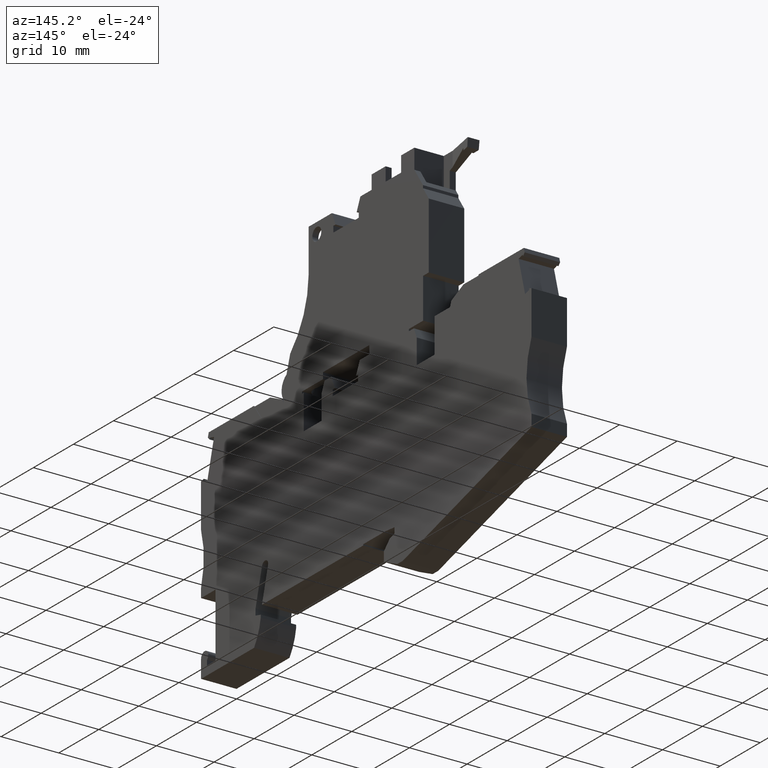
[diagram: clean part render]
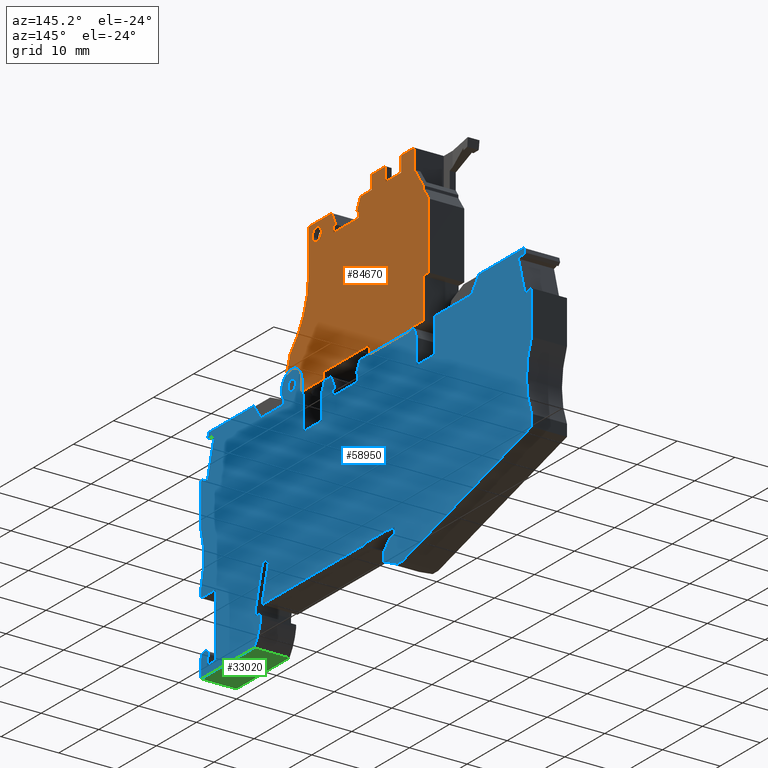
[diagram: same view with three faces highlighted in distinct colors, each labeled with its STEP entity id]
A machine part, auxiliary view with three faces highlighted in distinct colors.
Their STEP definitions:

[orange] entity #84670 — the highlighted planar face has unit normal (1, 0, 0).
#1080=CARTESIAN_POINT('',(53.0297787793713,35.811800285281,
0.499999999960732));
#1090=VERTEX_POINT('',#1080);
#32200=CARTESIAN_POINT('',(43.2035718829087,34.605293786159,
0.499999999962035));
#32210=VERTEX_POINT('',#32200);
#56740=CARTESIAN_POINT('',(22.1629120977651,36.4969717721369,
0.499999999964754));
#56750=VERTEX_POINT('',#56740);
#57730=CARTESIAN_POINT('',(5.12459570687038,30.3149006317548,
0.499999999967079));
#57740=DIRECTION('',(1.30635874114573E-13,1.60400341780722E-14,1.));
#57750=DIRECTION('',(0.992546151641338,0.121869343405017,
-1.31616922552198E-13));
#57760=AXIS2_PLACEMENT_3D('',#57730,#57740,#57750);
#57770=PLANE('',#57760);
#58490=CARTESIAN_POINT('',(23.7235978425183,34.4803508344977,
0.499999999964583));
#58500=DIRECTION('',(-1.30635874114573E-13,-1.60400341780722E-14,-1.));
#58510=DIRECTION('',(-0.951056516295151,0.309016994374956,
1.19285456187198E-13));
#58520=AXIS2_PLACEMENT_3D('',#58490,#58500,#58510);
#58530=CIRCLE('',#58520,2.54999999999999);
#58540=CARTESIAN_POINT('',(26.2654752253813,34.6837208679081,
0.499999999964247));
#58550=VERTEX_POINT('',#58540);
#58560=EDGE_CURVE('',#56750,#58550,#58530,.T.);
#58580=CARTESIAN_POINT('',(30.5241006626263,-3.5527136788005E-15,
0.499999999964247));
#58590=DIRECTION('',(-0.121869343405147,0.992546151641322,0.));
#58600=VECTOR('',#58590,1.);
#58610=LINE('',#58580,#58600);
#58620=CARTESIAN_POINT('',(26.483874498957,32.9050015242892,
0.499999999964247));
#58630=VERTEX_POINT('',#58620);
#58640=EDGE_CURVE('',#58630,#58550,#58610,.T.);
#58860=CARTESIAN_POINT('',(-2.48689957516035E-14,29.3005621830834,
0.499999999967765));
#58870=DIRECTION('',(-0.992546151641339,-0.121869343405015,
1.31610000675408E-13));
#58880=VECTOR('',#58870,1.);
#58890=LINE('',#58860,#58880);
#58900=EDGE_CURVE('',#1090,#32210,#58890,.T.);
#59820=CARTESIAN_POINT('',(-2.48689957516035E-14,29.6531906229272,
0.499999999967759));
#59830=DIRECTION('',(0.992546151641322,0.121869343405147,
-1.31603061781504E-13));
#59840=VECTOR('',#59830,1.);
#59850=LINE('',#59820,#59840);
#59860=CARTESIAN_POINT('',(31.6809485780502,33.5431219830705,
0.499999999963558));
#59870=VERTEX_POINT('',#59860);
#59880=EDGE_CURVE('',#58630,#59870,#59850,.T.);
#60330=CARTESIAN_POINT('',(15.4441640214051,-3.5527136788005E-15,
0.499999999966217));
#60340=DIRECTION('',(-0.181048319411903,-0.983474202019619,
3.94267951620009E-14));
#60350=VECTOR('',#60340,1.);
#60360=LINE('',#60330,#60350);
#60370=CARTESIAN_POINT('',(22.7103002633193,39.470443942782,
0.499999999965319));
#60380=VERTEX_POINT('',#60370);
#60390=EDGE_CURVE('',#60380,#56750,#60360,.T.);
#63460=CARTESIAN_POINT('',(25.9845191247301,50.4781094293561,
0.499999999965014));
#63470=VERTEX_POINT('',#63460);
#63500=CARTESIAN_POINT('',(11.0651328052451,48.9250763869472,
0.499999999966004));
#63510=DIRECTION('',(6.55111548403831E-14,8.21254566076691E-15,1.));
#63520=DIRECTION('',(0.990506268008274,0.13746757085335,
-6.60181681963679E-14));
#63530=AXIS2_PLACEMENT_3D('',#63500,#63510,#63520);
#63540=CIRCLE('',#63530,14.999999992695);
#63550=EDGE_CURVE('',#60380,#63470,#63540,.T.);
#63860=CARTESIAN_POINT('',(25.0586748890969,58.0185056226961,
0.49999999996403));
#63870=VERTEX_POINT('',#63860);
#63900=CARTESIAN_POINT('',(32.1824516262224,-3.5527136788005E-15,
0.49999999996403));
#63910=DIRECTION('',(0.121869343405148,-0.992546151641322,0.));
#63920=VECTOR('',#63910,1.);
#63930=LINE('',#63900,#63920);
#63940=EDGE_CURVE('',#63870,#63470,#63930,.T.);
#64510=CARTESIAN_POINT('',(30.8245150026396,58.7264617692738,
0.499999999963266));
#64520=VERTEX_POINT('',#64510);
#64550=CARTESIAN_POINT('',(-2.48689957516035E-14,54.9416872296297,
0.499999999967353));
#64560=DIRECTION('',(-0.992546151641322,-0.121869343405148,
1.31603061781504E-13));
#64570=VECTOR('',#64560,1.);
#64580=LINE('',#64550,#64570);
#64590=EDGE_CURVE('',#64520,#63870,#64580,.T.);
#65430=CARTESIAN_POINT('',(65.7260861590798,-3.5527136788005E-15,
0.499999999959648));
#65440=DIRECTION('',(-0.510892985900963,0.859644320028463,
5.30131494258512E-14));
#65450=VECTOR('',#65440,1.);
#65460=LINE('',#65430,#65450);
#65470=CARTESIAN_POINT('',(31.9992076083904,56.7498877035087,
0.499999999963144));
#65480=VERTEX_POINT('',#65470);
#65490=EDGE_CURVE('',#65480,#64520,#65460,.T.);
#65740=CARTESIAN_POINT('',(-2.48689957516035E-14,52.8208790480716,
0.499999999967387));
#65750=DIRECTION('',(0.992546151641322,0.121869343405148,
-1.31603061781504E-13));
#65760=VECTOR('',#65750,1.);
#65770=LINE('',#65740,#65760);
#65780=CARTESIAN_POINT('',(31.475244016681,56.6855530639716,
0.499999999963214));
#65790=VERTEX_POINT('',#65780);
#65800=EDGE_CURVE('',#65790,#65480,#65770,.T.);
#66050=CARTESIAN_POINT('',(38.4353547591791,-3.5527136788005E-15,
0.499999999963213));
#66060=DIRECTION('',(-0.121869343405148,0.992546151641322,0.));
#66070=VECTOR('',#66060,1.);
#66080=LINE('',#66050,#66070);
#66090=CARTESIAN_POINT('',(31.605644214061,55.6235286822326,
0.499999999963213));
#66100=VERTEX_POINT('',#66090);
#66110=EDGE_CURVE('',#66100,#65790,#66080,.T.);
#66360=CARTESIAN_POINT('',(-2.48689957516035E-14,51.7428435353538,
0.499999999967404));
#66370=DIRECTION('',(-0.992546151641315,-0.121869343405205,
1.31610000675408E-13));
#66380=VECTOR('',#66370,1.);
#66390=LINE('',#66360,#66380);
#66400=CARTESIAN_POINT('',(37.8834986201358,56.3943522788952,
0.499999999962381));
#66410=VERTEX_POINT('',#66400);
#66420=EDGE_CURVE('',#66410,#66100,#66390,.T.);
#66670=CARTESIAN_POINT('',(44.8078544021037,-3.5527136788005E-15,
0.499999999962381));
#66680=DIRECTION('',(0.121869343405148,-0.992546151641322,0.));
#66690=VECTOR('',#66680,1.);
#66700=LINE('',#66670,#66690);
#66710=CARTESIAN_POINT('',(37.7530984227559,57.4563766606335,
0.499999999962381));
#66720=VERTEX_POINT('',#66710);
#66730=EDGE_CURVE('',#66720,#66410,#66700,.T.);
#66980=CARTESIAN_POINT('',(-2.48689957516035E-14,52.8208790480712,
0.499999999967387));
#66990=DIRECTION('',(0.992546151641322,0.121869343405148,
-1.31603061781504E-13));
#67000=VECTOR('',#66990,1.);
#67010=LINE('',#66980,#67000);
#67020=CARTESIAN_POINT('',(37.2291348310479,57.3920420210965,
0.49999999996245));
#67030=VERTEX_POINT('',#67020);
#67040=EDGE_CURVE('',#67030,#66720,#67010,.T.);
#67290=CARTESIAN_POINT('',(19.9852219604109,-3.5527136788005E-15,
0.499999999965624));
#67300=DIRECTION('',(-0.287750497360487,-0.957705409439037,
5.295763827462E-14));
#67310=VECTOR('',#67300,1.);
#67320=LINE('',#67290,#67310);
#67330=CARTESIAN_POINT('',(37.8907575013107,59.5940872517062,
0.499999999962329));
#67340=VERTEX_POINT('',#67330);
#67350=EDGE_CURVE('',#67340,#67030,#67320,.T.);
#67940=CARTESIAN_POINT('',(-2.48689957516035E-14,54.9416872296293,
0.499999999967353));
#67950=DIRECTION('',(-0.992546151641322,-0.121869343405148,
1.31603061781504E-13));
#67960=VECTOR('',#67950,1.);
#67970=LINE('',#67940,#67960);
#67980=CARTESIAN_POINT('',(47.9798206964012,60.8328684460371,
0.499999999960991));
#67990=VERTEX_POINT('',#67980);
#68000=CARTESIAN_POINT('',(44.1466226632748,60.3622109086857,
0.4999999999615));
#68010=VERTEX_POINT('',#68000);
#68020=EDGE_CURVE('',#67990,#68010,#67970,.T.);
#68240=CARTESIAN_POINT('',(40.6727111325301,59.9356682067677,
0.49999999996196));
#68250=VERTEX_POINT('',#68240);
#68280=EDGE_CURVE('',#68250,#67340,#67970,.T.);
#68530=CARTESIAN_POINT('',(55.4491577370121,-3.5527136788005E-15,
0.499999999960991));
#68540=DIRECTION('',(0.121869343405147,-0.992546151641322,0.));
#68550=VECTOR('',#68540,1.);
#68560=LINE('',#68530,#68550);
#68570=CARTESIAN_POINT('',(47.6532108560749,63.4928921324404,
0.499999999960991));
#68580=VERTEX_POINT('',#68570);
#68590=EDGE_CURVE('',#68580,#67990,#68560,.T.);
#69120=CARTESIAN_POINT('',(50.9415314620025,63.8966471341472,
0.499999999960555));
#69130=VERTEX_POINT('',#69120);
#69160=CARTESIAN_POINT('',(-2.48689957516035E-14,57.6418135618637,
0.49999999996731));
#69170=DIRECTION('',(-0.992546151641322,-0.121869343405148,
1.31603061781504E-13));
#69180=VECTOR('',#69170,1.);
#69190=LINE('',#69160,#69180);
#69200=EDGE_CURVE('',#69130,#68580,#69190,.T.);
#69750=CARTESIAN_POINT('',(103.737130571275,-3.5527136788005E-15,
0.499999999954683));
#69760=DIRECTION('',(-0.657225128829871,0.753694321349551,
7.38298311375729E-14));
#69770=VECTOR('',#69760,1.);
#69780=LINE('',#69750,#69770);
#69790=CARTESIAN_POINT('',(55.6419397182922,55.1547265008777,
0.499999999960081));
#69800=VERTEX_POINT('',#69790);
#69810=CARTESIAN_POINT('',(53.9416353820203,57.10460587493,
0.499999999960272));
#69820=VERTEX_POINT('',#69810);
#69830=EDGE_CURVE('',#69800,#69820,#69780,.T.);
#70130=CARTESIAN_POINT('',(62.4140885934223,-3.5527136788005E-15,
0.499999999960081));
#70140=DIRECTION('',(-0.121869343405148,0.992546151641322,0.));
#70150=VECTOR('',#70140,1.);
#70160=LINE('',#70130,#70150);
#70170=CARTESIAN_POINT('',(57.0471425610685,43.7102677477332,
0.499999999960081));
#70180=VERTEX_POINT('',#70170);
#70190=EDGE_CURVE('',#70180,#69800,#70160,.T.);
#70440=CARTESIAN_POINT('',(-2.48689957516035E-14,36.7057593976069,
0.499999999967646));
#70450=DIRECTION('',(0.992546151641322,0.121869343405148,
-1.31603061781504E-13));
#70460=VECTOR('',#70450,1.);
#70470=LINE('',#70440,#70460);
#70480=CARTESIAN_POINT('',(55.6575779494478,43.5396506670491,
0.499999999960265));
#70490=VERTEX_POINT('',#70480);
#70500=EDGE_CURVE('',#70490,#70180,#70470,.T.);
#70750=CARTESIAN_POINT('',(61.0035748384673,-3.5527136788005E-15,
0.499999999960265));
#70760=DIRECTION('',(-0.121869343405148,0.992546151641322,0.));
#70770=VECTOR('',#70760,1.);
#70780=LINE('',#70750,#70770);
#70790=CARTESIAN_POINT('',(56.5106633528568,36.5918276090379,
0.499999999960265));
#70800=VERTEX_POINT('',#70790);
#70810=EDGE_CURVE('',#70800,#70490,#70780,.T.);
#71100=CARTESIAN_POINT('',(52.9871245090662,36.1591914392788,
0.499999999960732));
#71110=VERTEX_POINT('',#71100);
#71140=CARTESIAN_POINT('',(-2.48689957516035E-14,29.6531906229255,
0.499999999967759));
#71150=DIRECTION('',(0.992546151641322,0.121869343405148,
-1.31610000675408E-13));
#71160=VECTOR('',#71150,1.);
#71170=LINE('',#71140,#71160);
#71180=EDGE_CURVE('',#71110,#70800,#71170,.T.);
#71370=CARTESIAN_POINT('',(47.4525676853582,-3.5527136788005E-15,
0.499999999962035));
#71380=DIRECTION('',(0.121869343405148,-0.992546151641322,0.));
#71390=VECTOR('',#71380,1.);
#71400=LINE('',#71370,#71390);
#71410=CARTESIAN_POINT('',(43.0268613348578,36.0444857069626,
0.499999999962035));
#71420=VERTEX_POINT('',#71410);
#71430=EDGE_CURVE('',#71420,#32210,#71400,.T.);
#71680=CARTESIAN_POINT('',(-2.48689957516035E-14,30.7614514309316,
0.499999999967741));
#71690=DIRECTION('',(0.992546151641321,0.121869343405154,
-1.31610000675408E-13));
#71700=VECTOR('',#71690,1.);
#71710=LINE('',#71680,#71700);
#71720=CARTESIAN_POINT('',(31.5468923003045,34.6349227498759,
0.499999999963558));
#71730=VERTEX_POINT('',#71720);
#71740=EDGE_CURVE('',#71730,#71420,#71710,.T.);
#71990=CARTESIAN_POINT('',(35.7995260820541,-3.5527136788005E-15,
0.499999999963558));
#72000=DIRECTION('',(-0.121869343405147,0.992546151641322,0.));
#72010=VECTOR('',#72000,1.);
#72020=LINE('',#71990,#72010);
#72030=EDGE_CURVE('',#59870,#71730,#72020,.T.);
#72570=CARTESIAN_POINT('',(28.447808693322,56.5203702632118,
0.499999999963685));
#72580=VERTEX_POINT('',#72570);
#72610=CARTESIAN_POINT('',(27.3311942732693,56.3832672519478,
0.49999999996376));
#72620=DIRECTION('',(6.55111548403841E-14,8.21254566075881E-15,1.));
#72630=DIRECTION('',(0.992546151641322,0.121869343405147,
-6.60237021737635E-14));
#72640=AXIS2_PLACEMENT_3D('',#72610,#72620,#72630);
#72650=CIRCLE('',#72640,1.12499999945212);
#72660=CARTESIAN_POINT('',(26.2145798532166,56.2461642406837,
0.499999999963834));
#72670=VERTEX_POINT('',#72660);
#72680=EDGE_CURVE('',#72670,#72580,#72650,.T.);
#78740=CARTESIAN_POINT('',(51.3616522817786,60.4750376362858,
0.499999999960555));
#78750=VERTEX_POINT('',#78740);
#78780=CARTESIAN_POINT('',(58.7870532235366,-3.5527136788005E-15,
0.499999999960555));
#78790=DIRECTION('',(0.121869343405147,-0.992546151641322,0.));
#78800=VECTOR('',#78790,1.);
#78810=LINE('',#78780,#78800);
#78820=EDGE_CURVE('',#69130,#78750,#78810,.T.);
#80820=CARTESIAN_POINT('',(104.096180426201,-3.5527136788005E-15,
0.499999999954636));
#80830=DIRECTION('',(-0.657225128829871,0.753694321349551,
7.38298311375729E-14));
#80840=VECTOR('',#80830,1.);
#80850=LINE('',#80820,#80840);
#80860=CARTESIAN_POINT('',(53.8827931730547,57.5838372093331,
0.499999999960277));
#80870=VERTEX_POINT('',#80860);
#80880=EDGE_CURVE('',#80870,#78750,#80850,.T.);
#81160=CARTESIAN_POINT('',(60.953199339907,-3.5527136788005E-15,
0.499999999960272));
#81170=DIRECTION('',(-0.121869343405148,0.992546151641322,
6.93889390390723E-18));
#81180=VECTOR('',#81170,1.);
#81190=LINE('',#81160,#81180);
#81200=EDGE_CURVE('',#69820,#80870,#81190,.T.);
#81400=CARTESIAN_POINT('',(51.5581702248263,-3.5527136788005E-15,
0.499999999961499));
#81410=DIRECTION('',(-0.121869343405148,0.992546151641322,0.));
#81420=VECTOR('',#81410,1.);
#81430=LINE('',#81400,#81420);
#81440=CARTESIAN_POINT('',(43.8541362390372,62.7443216731562,
0.499999999961499));
#81450=VERTEX_POINT('',#81440);
#81460=EDGE_CURVE('',#68010,#81450,#81430,.T.);
#82090=CARTESIAN_POINT('',(48.0318858357203,-3.5527136788005E-15,
0.49999999996196));
#82100=DIRECTION('',(0.121869343405148,-0.992546151641322,0.));
#82110=VECTOR('',#82100,1.);
#82120=LINE('',#82090,#82110);
#82130=CARTESIAN_POINT('',(40.3802247082926,62.3177789712381,
0.49999999996196));
#82140=VERTEX_POINT('',#82130);
#82150=EDGE_CURVE('',#82140,#68250,#82120,.T.);
#82400=CARTESIAN_POINT('',(-2.48689957516035E-14,57.3597108112698,
0.499999999967314));
#82410=DIRECTION('',(-0.992546151641322,-0.121869343405148,
1.31610000675408E-13));
#82420=VECTOR('',#82410,1.);
#82430=LINE('',#82400,#82420);
#82440=EDGE_CURVE('',#81450,#82140,#82430,.T.);
#84070=CARTESIAN_POINT('',(57.4269149525372,-3.5527136788005E-15,
0.499999999960732));
#84080=DIRECTION('',(0.121869343405014,-0.992546151641338,0.));
#84090=VECTOR('',#84080,1.);
#84100=LINE('',#84070,#84090);
#84110=EDGE_CURVE('',#71110,#1090,#84100,.T.);
#84260=ORIENTED_EDGE('',*,*,#71430,.T.);
#84270=ORIENTED_EDGE('',*,*,#71740,.T.);
#84280=ORIENTED_EDGE('',*,*,#72030,.T.);
#84290=ORIENTED_EDGE('',*,*,#59880,.T.);
#84300=ORIENTED_EDGE('',*,*,#58640,.F.);
#84310=ORIENTED_EDGE('',*,*,#58560,.T.);
#84320=ORIENTED_EDGE('',*,*,#60390,.T.);
#84330=ORIENTED_EDGE('',*,*,#63550,.F.);
#84340=ORIENTED_EDGE('',*,*,#63940,.T.);
#84350=ORIENTED_EDGE('',*,*,#64590,.T.);
#84360=ORIENTED_EDGE('',*,*,#65490,.T.);
#84370=ORIENTED_EDGE('',*,*,#65800,.T.);
#84380=ORIENTED_EDGE('',*,*,#66110,.T.);
#84390=ORIENTED_EDGE('',*,*,#66420,.T.);
#84400=ORIENTED_EDGE('',*,*,#66730,.T.);
#84410=ORIENTED_EDGE('',*,*,#67040,.T.);
#84420=ORIENTED_EDGE('',*,*,#67350,.T.);
#84430=ORIENTED_EDGE('',*,*,#68280,.T.);
#84440=ORIENTED_EDGE('',*,*,#82150,.T.);
#84450=ORIENTED_EDGE('',*,*,#82440,.T.);
#84460=ORIENTED_EDGE('',*,*,#81460,.T.);
#84470=ORIENTED_EDGE('',*,*,#68020,.T.);
#84480=ORIENTED_EDGE('',*,*,#68590,.T.);
#84490=ORIENTED_EDGE('',*,*,#69200,.T.);
#84500=ORIENTED_EDGE('',*,*,#78820,.F.);
#84510=ORIENTED_EDGE('',*,*,#80880,.T.);
#84520=ORIENTED_EDGE('',*,*,#81200,.T.);
#84530=ORIENTED_EDGE('',*,*,#69830,.T.);
#84540=ORIENTED_EDGE('',*,*,#70190,.T.);
#84550=ORIENTED_EDGE('',*,*,#70500,.T.);
#84560=ORIENTED_EDGE('',*,*,#70810,.T.);
#84570=ORIENTED_EDGE('',*,*,#71180,.T.);
#84580=ORIENTED_EDGE('',*,*,#84110,.F.);
#84590=ORIENTED_EDGE('',*,*,#58900,.F.);
#84600=EDGE_LOOP('',(#84590,#84580,#84570,#84560,#84550,#84540,#84530,
#84520,#84510,#84500,#84490,#84480,#84470,#84460,#84450,#84440,#84430,
#84420,#84410,#84400,#84390,#84380,#84370,#84360,#84350,#84340,#84330,
#84320,#84310,#84300,#84290,#84280,#84270,#84260));
#84610=FACE_OUTER_BOUND('',#84600,.T.);
#84620=EDGE_CURVE('',#72580,#72670,#72650,.T.);
#84630=ORIENTED_EDGE('',*,*,#84620,.F.);
#84640=ORIENTED_EDGE('',*,*,#72680,.F.);
#84650=EDGE_LOOP('',(#84640,#84630));
#84660=FACE_BOUND('',#84650,.T.);
#84670=ADVANCED_FACE('',(#84610,#84660),#57770,.T.);

[blue] entity #58950 — the highlighted planar face has unit normal (1, 0, 0).
#120=CARTESIAN_POINT('',(84.8702166293314,27.5808210657404,
0.499999999956705));
#130=VERTEX_POINT('',#120);
#290=CARTESIAN_POINT('',(86.3326487494341,15.6702672522041,
0.499999999956705));
#300=VERTEX_POINT('',#290);
#330=CARTESIAN_POINT('',(99.2466863026298,23.3009706322769,
0.499999999954896));
#340=DIRECTION('',(1.30635874114574E-13,1.60400341780714E-14,1.));
#350=DIRECTION('',(0.992546151641338,0.121869343405017,
-1.31616922552198E-13));
#360=AXIS2_PLACEMENT_3D('',#330,#340,#350);
#370=CIRCLE('',#360,15.);
#380=EDGE_CURVE('',#130,#300,#370,.T.);
#690=CARTESIAN_POINT('',(55.8163182368192,0.639222961579942,
0.499999999960934));
#700=VERTEX_POINT('',#690);
#730=CARTESIAN_POINT('',(26.409558637322,-11.782950709781,
0.499999999964974));
#740=DIRECTION('',(0.921182350415005,0.389131182615691,
-1.26581139034291E-13));
#750=VECTOR('',#740,1.);
#760=LINE('',#730,#750);
#770=CARTESIAN_POINT('',(86.5824697081946,13.6356388190877,
0.499999999956705));
#780=VERTEX_POINT('',#770);
#790=EDGE_CURVE('',#700,#780,#760,.T.);
#1080=CARTESIAN_POINT('',(53.0297787793713,35.811800285281,
0.499999999960732));
#1090=VERTEX_POINT('',#1080);
#1240=CARTESIAN_POINT('',(54.252099665049,35.9618824185112,
0.499999999960571));
#1250=VERTEX_POINT('',#1240);
#1280=CARTESIAN_POINT('',(-2.48689957516035E-14,29.3005621830849,
0.499999999967764));
#1290=DIRECTION('',(0.992546151641338,0.121869343405014,
-1.31610000675408E-13));
#1300=VECTOR('',#1290,1.);
#1310=LINE('',#1280,#1300);
#1320=EDGE_CURVE('',#1090,#1250,#1310,.T.);
#4540=CARTESIAN_POINT('',(86.6783015281376,12.8551512787071,
0.499999999956705));
#4550=DIRECTION('',(-0.121869343405393,0.992546151641292,
3.4007892214545E-20));
#4560=VECTOR('',#4550,1.);
#4570=LINE('',#4540,#4560);
#4580=EDGE_CURVE('',#780,#300,#4570,.T.);
#4800=CARTESIAN_POINT('',(40.1694208776503,32.1119387046764,
0.499999999962471));
#4810=VERTEX_POINT('',#4800);
#4860=CARTESIAN_POINT('',(20.5295663542834,29.70046779083,
0.499999999961139));
#4870=DIRECTION('',(0.992546151641335,0.121869343405043,
3.0322983360969E-14));
#4880=VECTOR('',#4870,1.);
#4890=LINE('',#4860,#4880);
#4900=CARTESIAN_POINT('',(40.6933844696148,32.1762733442449,
0.499999999962403));
#4910=VERTEX_POINT('',#4900);
#4920=EDGE_CURVE('',#4810,#4910,#4890,.T.);
#5370=CARTESIAN_POINT('',(3.51461203501251,31.3114407598305,
0.499999999967273));
#5380=VERTEX_POINT('',#5370);
#5410=CARTESIAN_POINT('',(20.6270603406576,28.9064429911535,
0.499999999961139));
#5420=DIRECTION('',(0.990268068741569,-0.139173100960072,
2.9284675769163E-14));
#5430=VECTOR('',#5420,1.);
#5440=LINE('',#5410,#5430);
#5450=CARTESIAN_POINT('',(4.57419886856599,31.1625255418032,
0.499999999967137));
#5460=VERTEX_POINT('',#5450);
#5470=EDGE_CURVE('',#5380,#5460,#5440,.T.);
#5700=CARTESIAN_POINT('',(85.665841264057,26.4769653475465,
0.499999999959863));
#5710=DIRECTION('',(0.374606593415921,-0.927183854566784,
7.8292180160149E-15));
#5720=VECTOR('',#5710,1.);
#5730=LINE('',#5700,#5720);
#5740=CARTESIAN_POINT('',(80.0295492528461,40.4272776065094,
0.499999999957132));
#5750=VERTEX_POINT('',#5740);
#5760=CARTESIAN_POINT('',(82.3989359562018,34.5628397263746,
0.49999999995692));
#5770=VERTEX_POINT('',#5760);
#5780=EDGE_CURVE('',#5750,#5770,#5730,.T.);
#6310=CARTESIAN_POINT('',(83.2890144502733,35.2161480111187,
0.499999999956788));
#6320=VERTEX_POINT('',#6310);
#6350=CARTESIAN_POINT('',(86.7653298100404,26.6119655658827,
0.499999999959897));
#6360=DIRECTION('',(0.37460659341789,-0.927183854565989,
7.8292180160771E-15));
#6370=VECTOR('',#6360,1.);
#6380=LINE('',#6350,#6370);
#6390=CARTESIAN_POINT('',(83.3910226805879,34.9636687813288,
0.499999999956784));
#6400=VERTEX_POINT('',#6390);
#6410=EDGE_CURVE('',#6320,#6400,#6380,.T.);
#6710=CARTESIAN_POINT('',(41.9867621779294,18.2352616769729,
0.499999999958518));
#6720=DIRECTION('',(-0.927183854567012,-0.374606593415355,
-2.92948297478289E-14));
#6730=VECTOR('',#6720,1.);
#6740=LINE('',#6710,#6730);
#6750=EDGE_CURVE('',#6400,#5770,#6740,.T.);
#7050=CARTESIAN_POINT('',(83.9440192867133,35.124093084676,
0.499999999956704));
#7060=VERTEX_POINT('',#7050);
#7090=CARTESIAN_POINT('',(39.1399239985513,41.4208980342378,
0.499999999958519));
#7100=DIRECTION('',(0.990268068742551,-0.139173100953087,
2.92846757692185E-14));
#7110=VECTOR('',#7100,1.);
#7120=LINE('',#7090,#7110);
#7130=EDGE_CURVE('',#6320,#7060,#7120,.T.);
#7310=CARTESIAN_POINT('',(44.9315532042519,-5.74813659941446,
0.499999999958518));
#7320=DIRECTION('',(0.615661475326905,0.788010753605748,
2.14554577531824E-14));
#7330=VECTOR('',#7320,1.);
#7340=LINE('',#7310,#7330);
#7350=CARTESIAN_POINT('',(81.123644207547,40.5756274316724,
0.499999999956988));
#7360=VERTEX_POINT('',#7350);
#7370=CARTESIAN_POINT('',(81.5004236651671,41.0578831456339,
0.49999999995693));
#7380=VERTEX_POINT('',#7370);
#7390=EDGE_CURVE('',#7360,#7380,#7340,.T.);
#7860=CARTESIAN_POINT('',(85.0155567892043,26.3971204538398,
0.499999999959844));
#7870=DIRECTION('',(-0.121869343405393,0.992546151641292,
1.96159804490901E-17));
#7880=VECTOR('',#7870,1.);
#7890=LINE('',#7860,#7880);
#7900=EDGE_CURVE('',#130,#7060,#7890,.T.);
#8210=CARTESIAN_POINT('',(60.1132902316294,30.636487175846,
0.499999999959891));
#8220=VERTEX_POINT('',#8210);
#8250=CARTESIAN_POINT('',(3.35028668424821E-12,23.2555032303263,
0.499999999967862));
#8260=DIRECTION('',(0.992546151641321,0.121869343405158,
-1.31616922552196E-13));
#8270=VECTOR('',#8260,1.);
#8280=LINE('',#8250,#8270);
#8290=CARTESIAN_POINT('',(55.6964598568062,30.0941685976906,
0.499999999960476));
#8300=VERTEX_POINT('',#8290);
#8310=EDGE_CURVE('',#8300,#8220,#8280,.T.);
#8880=CARTESIAN_POINT('',(68.5406406811295,37.7162946531139,
0.499999999958675));
#8890=VERTEX_POINT('',#8880);
#9200=CARTESIAN_POINT('',(70.0387847980581,40.4190181843314,
0.499999999958436));
#9210=VERTEX_POINT('',#9200);
#9240=CARTESIAN_POINT('',(57.124782510159,17.121541345282,
0.49999999995897));
#9250=DIRECTION('',(-0.484809620246417,-0.874619707139351,
-1.78392720866406E-14));
#9260=VECTOR('',#9250,1.);
#9270=LINE('',#9240,#9260);
#9280=EDGE_CURVE('',#9210,#8890,#9270,.T.);
#20960=CARTESIAN_POINT('',(81.2046248315588,41.7900109499531,
0.499999999956957));
#20970=VERTEX_POINT('',#20960);
#21000=CARTESIAN_POINT('',(39.720026444251,36.6963427527393,
0.499999999958519));
#21010=DIRECTION('',(-0.992546151641357,-0.121869343404864,
-3.03229833609689E-14));
#21020=VECTOR('',#21010,1.);
#21030=LINE('',#21000,#21020);
#21040=EDGE_CURVE('',#20970,#9210,#21030,.T.);
#21320=CARTESIAN_POINT('',(87.3099362860644,26.6788348329061,
0.499999999959914));
#21330=DIRECTION('',(-0.374606593416158,0.927183854566688,
-7.82921801602239E-15));
#21340=VECTOR('',#21330,1.);
#21350=LINE('',#21320,#21340);
#21360=EDGE_CURVE('',#7380,#20970,#21350,.T.);
#21570=CARTESIAN_POINT('',(81.0216359772327,40.8281066614642,
0.499999999956996));
#21580=VERTEX_POINT('',#21570);
#21700=CARTESIAN_POINT('',(41.1887468686212,24.7345748108134,
0.499999999958518));
#21710=DIRECTION('',(0.927183854566883,0.374606593415674,
2.92948297478261E-14));
#21720=VECTOR('',#21710,1.);
#21730=LINE('',#21700,#21720);
#21740=EDGE_CURVE('',#5750,#21580,#21730,.T.);
#21980=CARTESIAN_POINT('',(86.7653298100082,26.6119655658787,
0.499999999959897));
#21990=DIRECTION('',(0.374606593415133,-0.927183854567102,
7.82921801598999E-15));
#22000=VECTOR('',#21990,1.);
#22010=LINE('',#21980,#22000);
#22020=EDGE_CURVE('',#21580,#7360,#22010,.T.);
#22240=CARTESIAN_POINT('',(50.9335437868805,1.59983288404985,
0.499999999961555));
#22250=VERTEX_POINT('',#22240);
#22420=CARTESIAN_POINT('',(50.7320747686687,3.24066636287205,
0.499999999961555));
#22430=VERTEX_POINT('',#22420);
#22460=CARTESIAN_POINT('',(48.4402311012197,21.9062351493572,
0.49999999996195));
#22470=DIRECTION('',(-0.121869343405017,0.992546151641338,
1.96159804605801E-17));
#22480=VECTOR('',#22470,1.);
#22490=LINE('',#22460,#22480);
#22500=EDGE_CURVE('',#22250,#22430,#22490,.T.);
#23060=CARTESIAN_POINT('',(20.6599665517266,28.638443408575,
0.499999999961139));
#23070=DIRECTION('',(-0.992546151641342,-0.121869343404985,
-3.03229833609689E-14));
#23080=VECTOR('',#23070,1.);
#23090=LINE('',#23060,#23080);
#23100=CARTESIAN_POINT('',(40.8237846670582,31.1142489619886,
0.499999999962403));
#23110=VERTEX_POINT('',#23100);
#23120=CARTESIAN_POINT('',(34.5459302579267,30.3434253649521,
0.499999999963235));
#23130=VERTEX_POINT('',#23120);
#23140=EDGE_CURVE('',#23110,#23130,#23090,.T.);
#23580=CARTESIAN_POINT('',(20.2730313864165,31.7897774400301,
0.499999999961139));
#23590=DIRECTION('',(0.992546151641331,0.121869343405077,
3.0322983360969E-14));
#23600=VECTOR('',#23590,1.);
#23610=LINE('',#23580,#23600);
#23620=CARTESIAN_POINT('',(59.3820741711998,36.5917640856898,
0.499999999959891));
#23630=VERTEX_POINT('',#23620);
#23640=EDGE_CURVE('',#23630,#8890,#23610,.T.);
#24030=CARTESIAN_POINT('',(63.8749778571196,-4.77257401521831E-12,
0.49999999995989));
#24040=DIRECTION('',(-0.121869343405017,0.992546151641338,
3.40078409588876E-20));
#24050=VECTOR('',#24040,1.);
#24060=LINE('',#24030,#24050);
#24070=EDGE_CURVE('',#8220,#23630,#24060,.T.);
#24280=CARTESIAN_POINT('',(18.5799394874261,2.11222949998729,
0.499999999965774));
#24290=VERTEX_POINT('',#24280);
#24460=CARTESIAN_POINT('',(18.7139957651757,1.02042873317372,
0.499999999965773));
#24470=VERTEX_POINT('',#24460);
#24500=CARTESIAN_POINT('',(16.6291269411129,18.0003226932261,
0.499999999960978));
#24510=DIRECTION('',(0.12186934340514,-0.992546151641323,
-1.96159804568298E-17));
#24520=VECTOR('',#24510,1.);
#24530=LINE('',#24500,#24520);
#24540=EDGE_CURVE('',#24290,#24470,#24530,.T.);
#25150=CARTESIAN_POINT('',(33.7648010461269,33.4463584535027,
0.499999999963288));
#25160=VERTEX_POINT('',#25150);
#25310=CARTESIAN_POINT('',(34.9394936524465,31.4697843867762,
0.499999999963169));
#25320=VERTEX_POINT('',#25310);
#25350=CARTESIAN_POINT('',(41.1548117641934,21.0116981350678,
0.499999999961727));
#25360=DIRECTION('',(0.51089298590013,-0.859644320028958,
1.21816017912573E-14));
#25370=VECTOR('',#25360,1.);
#25380=LINE('',#25350,#25370);
#25390=EDGE_CURVE('',#25160,#25320,#25380,.T.);
#25600=CARTESIAN_POINT('',(32.1054168262426,33.242611690695,
0.499999999963506));
#25610=VERTEX_POINT('',#25600);
#25660=CARTESIAN_POINT('',(28.164061785064,19.4166346030827,
0.49999999996133));
#25670=DIRECTION('',(0.27414719487327,0.961687743263435,
1.18229270886445E-14));
#25680=VECTOR('',#25670,1.);
#25690=LINE('',#25660,#25680);
#25700=CARTESIAN_POINT('',(31.599450578703,31.4677201438791,
0.499999999963602));
#25710=VERTEX_POINT('',#25700);
#25720=EDGE_CURVE('',#25710,#25610,#25690,.T.);
#26150=CARTESIAN_POINT('',(3.47671413896429,31.0417832177458,
0.499999999967282));
#26160=VERTEX_POINT('',#26150);
#26190=CARTESIAN_POINT('',(1.38072625798496,16.1280545108788,
0.499999999960512));
#26200=DIRECTION('',(0.139173100959494,0.990268068741651,
7.86711318025971E-15));
#26210=VECTOR('',#26200,1.);
#26220=LINE('',#26190,#26210);
#26230=EDGE_CURVE('',#26160,#5380,#26220,.T.);
#26790=CARTESIAN_POINT('',(14.2701930563462,33.5714961351515,
0.499999999965834));
#26800=VERTEX_POINT('',#26790);
#26830=CARTESIAN_POINT('',(19.9683580279036,34.2711428191357,
0.499999999961139));
#26840=DIRECTION('',(0.992546151641338,0.121869343405017,
3.03229833609689E-14));
#26850=VECTOR('',#26840,1.);
#26860=LINE('',#26830,#26850);
#26870=CARTESIAN_POINT('',(3.10435302284756,32.2005033695278,
0.499999999967313));
#26880=VERTEX_POINT('',#26870);
#26890=EDGE_CURVE('',#26880,#26800,#26860,.T.);
#27580=CARTESIAN_POINT('',(0.836119781928859,16.0611852438514,
0.499999999960495));
#27590=DIRECTION('',(0.139173100960589,0.990268068741497,
7.8671131802921E-15));
#27600=VECTOR('',#27590,1.);
#27610=LINE('',#27580,#27600);
#27620=CARTESIAN_POINT('',(2.99445842500166,31.4185626753645,
0.499999999967339));
#27630=VERTEX_POINT('',#27620);
#27640=EDGE_CURVE('',#27630,#26880,#27610,.T.);
#28040=CARTESIAN_POINT('',(22.1568560403082,16.4472568491596,
0.499999999961138));
#28050=DIRECTION('',(0.788010753607534,-0.615661475324619,
2.14277165675758E-14));
#28060=VECTOR('',#28050,1.);
#28070=LINE('',#28040,#28060);
#28080=EDGE_CURVE('',#27630,#26160,#28070,.T.);
#28370=CARTESIAN_POINT('',(34.4155300604833,31.405449747208,
0.499999999963235));
#28380=VERTEX_POINT('',#28370);
#28410=CARTESIAN_POINT('',(20.5295663542834,29.70046779083,
0.499999999961139));
#28420=DIRECTION('',(0.992546151641335,0.121869343405043,
3.0322983360969E-14));
#28430=VECTOR('',#28420,1.);
#28440=LINE('',#28410,#28430);
#28450=EDGE_CURVE('',#28380,#25320,#28440,.T.);
#28690=CARTESIAN_POINT('',(20.0467569921005,0.833121357882569,
0.499999999965603));
#28700=VERTEX_POINT('',#28690);
#28850=CARTESIAN_POINT('',(20.1018012370332,0.384821958284486,
0.499999999967124));
#28860=VERTEX_POINT('',#28850);
#28890=CARTESIAN_POINT('',(17.919436938246,18.1587528396526,
0.499999999961017));
#28900=DIRECTION('',(0.12186934340514,-0.992546151641323,
-1.96159804568298E-17));
#28910=VECTOR('',#28900,1.);
#28920=LINE('',#28890,#28910);
#28930=EDGE_CURVE('',#28700,#28860,#28920,.T.);
#29220=CARTESIAN_POINT('',(55.1724216801646,34.3621170497484,
0.499999999960476));
#29230=VERTEX_POINT('',#29220);
#29260=CARTESIAN_POINT('',(74.9404535580672,-6.22913162617941E-12,
0.499999999958445));
#29270=DIRECTION('',(0.498657173381138,-0.866799298243564,
-5.1244428037054E-14));
#29280=VECTOR('',#29270,1.);
#29290=LINE('',#29260,#29280);
#29300=EDGE_CURVE('',#1250,#29230,#29290,.T.);
#29480=CARTESIAN_POINT('',(-2.48689957516035E-14,29.3005621830795,
0.499999999967764));
#29490=DIRECTION('',(0.99254615164132,0.121869343405163,
-1.31603061781504E-13));
#29500=VECTOR('',#29490,1.);
#29510=LINE('',#29480,#29500);
#29520=EDGE_CURVE('',#25610,#25160,#29510,.T.);
#30240=CARTESIAN_POINT('',(3.69392900499192,24.8990800070134,
0.499999999967353));
#30250=VERTEX_POINT('',#30240);
#30300=CARTESIAN_POINT('',(21.4250756499669,22.4071298573042,
0.499999999961138));
#30310=DIRECTION('',(-0.990268068741617,0.139173100959731,
-2.92846757691657E-14));
#30320=VECTOR('',#30310,1.);
#30330=LINE('',#30300,#30320);
#30340=CARTESIAN_POINT('',(2.63434217143919,25.0479952250402,
0.499999999967489));
#30350=VERTEX_POINT('',#30340);
#30360=EDGE_CURVE('',#30250,#30350,#30330,.T.);
#30670=CARTESIAN_POINT('',(22.8598885658997,10.7215164106024,
0.499999999961138));
#30680=DIRECTION('',(-0.951056516295113,0.309016994375073,
-2.74736658746644E-14));
#30690=VECTOR('',#30680,1.);
#30700=LINE('',#30670,#30690);
#30710=CARTESIAN_POINT('',(54.4182978727015,0.467567645038038,
0.499999999961119));
#30720=VERTEX_POINT('',#30710);
#30730=EDGE_CURVE('',#30720,#22250,#30700,.T.);
#31120=CARTESIAN_POINT('',(25.3437139545419,-3.10234237479612,
0.499999999964974));
#31130=DIRECTION('',(-0.992546151641288,-0.121869343405426,
1.31616922552198E-13));
#31140=VECTOR('',#31130,1.);
#31150=LINE('',#31120,#31140);
#31160=EDGE_CURVE('',#700,#30720,#31150,.T.);
#31400=CARTESIAN_POINT('',(5.81252788555294,-5.50047048017755,
0.499999999967564));
#31410=VERTEX_POINT('',#31400);
#31560=CARTESIAN_POINT('',(5.43473292099816,-2.42357741008625,
0.499999999967418));
#31570=VERTEX_POINT('',#31560);
#31600=CARTESIAN_POINT('',(3.1304992788154,16.3428996229209,
0.499999999960565));
#31610=DIRECTION('',(-0.121869343404653,0.992546151641383,
1.96159804716839E-17));
#31620=VECTOR('',#31610,1.);
#31630=LINE('',#31600,#31620);
#31640=EDGE_CURVE('',#31410,#31570,#31630,.T.);
#31950=CARTESIAN_POINT('',(18.9548874062875,-3.88679163719565,
0.499999999967073));
#31960=VERTEX_POINT('',#31950);
#31990=CARTESIAN_POINT('',(10.6053593749804,0.644806497502245,
0.499999999960732));
#32000=DIRECTION('',(-3.00945698545541E-14,-3.71491183819992E-15,1.));
#32010=DIRECTION('',(0.992546151641323,0.12186934340514,
3.03229833609689E-14));
#32020=AXIS2_PLACEMENT_3D('',#31990,#32000,#32010);
#32030=CIRCLE('',#32020,9.499999999999);
#32040=EDGE_CURVE('',#31960,#28860,#32030,.T.);
#32200=CARTESIAN_POINT('',(43.2035718829087,34.605293786159,
0.499999999962035));
#32210=VERTEX_POINT('',#32200);
#32240=CARTESIAN_POINT('',(-2.48689957516035E-14,29.3005621830849,
0.499999999967764));
#32250=DIRECTION('',(0.992546151641338,0.121869343405014,
-1.31610000675408E-13));
#32260=VECTOR('',#32250,1.);
#32270=LINE('',#32240,#32260);
#32280=CARTESIAN_POINT('',(40.8310435482372,34.313983936357,
0.499999999962349));
#32290=VERTEX_POINT('',#32280);
#32300=EDGE_CURVE('',#32290,#32210,#32270,.T.);
#32650=CARTESIAN_POINT('',(24.1447467239817,0.257186460361661,
0.499999999961138));
#32660=DIRECTION('',(0.990268068741554,-0.139173100960181,
2.92846757691622E-14));
#32670=VECTOR('',#32660,1.);
#32680=LINE('',#32650,#32670);
#32690=EDGE_CURVE('',#24470,#28700,#32680,.T.);
#32930=CARTESIAN_POINT('',(24.5689257414426,-3.19747440532138,
0.499999999961138));
#32940=DIRECTION('',(-0.992546151641318,-0.121869343405178,
-3.0322983360969E-14));
#32950=VECTOR('',#32940,1.);
#32960=LINE('',#32930,#32950);
#32970=EDGE_CURVE('',#31960,#31410,#32960,.T.);
#33380=CARTESIAN_POINT('',(59.3915591338082,-4.18241794411462E-12,
0.499999999960476));
#33390=DIRECTION('',(0.12186934340502,-0.992546151641338,
-3.4007841324919E-20));
#33400=VECTOR('',#33390,1.);
#33410=LINE('',#33380,#33400);
#33420=EDGE_CURVE('',#29230,#8300,#33410,.T.);
#33740=CARTESIAN_POINT('',(35.7728608408977,20.3508776541507,
0.499999999961563));
#33750=DIRECTION('',(-0.121869343405043,0.992546151641335,
1.96159804597812E-17));
#33760=VECTOR('',#33750,1.);
#33770=LINE('',#33740,#33760);
#33780=EDGE_CURVE('',#23130,#28380,#33770,.T.);
#33970=CARTESIAN_POINT('',(1.38072625795275,16.1280545108748,
0.499999999960512));
#33980=DIRECTION('',(0.139173100962438,0.990268068741237,
7.86711318034678E-15));
#33990=VECTOR('',#33980,1.);
#34000=LINE('',#33970,#33990);
#34010=CARTESIAN_POINT('',(2.67224006748828,25.3176527671252,
0.49999999996748));
#34020=VERTEX_POINT('',#34010);
#34030=EDGE_CURVE('',#30350,#34020,#34000,.T.);
#34420=CARTESIAN_POINT('',(2.48021480393621,16.263054729211,
0.499999999960546));
#34430=DIRECTION('',(-0.139173100960336,-0.990268068741532,
-7.86711318028461E-15));
#34440=VECTOR('',#34430,1.);
#34450=LINE('',#34420,#34440);
#34460=EDGE_CURVE('',#5460,#30250,#34450,.T.);
#35010=CARTESIAN_POINT('',(36.6687643267207,20.4608807702687,
0.49999999996159));
#35020=DIRECTION('',(0.287750497361415,0.957705409438758,
1.22175186065577E-14));
#35030=VECTOR('',#35020,1.);
#35040=LINE('',#35010,#35030);
#35050=EDGE_CURVE('',#4810,#32290,#35040,.T.);
#35230=CARTESIAN_POINT('',(33.0061384431962,20.0111668594091,
0.499999999961478));
#35240=DIRECTION('',(-0.121869343405048,0.992546151641334,
1.96159804596165E-17));
#35250=VECTOR('',#35240,1.);
#35260=LINE('',#35230,#35250);
#35270=CARTESIAN_POINT('',(32.1234887553445,27.1997716918232,
0.499999999963602));
#35280=VERTEX_POINT('',#35270);
#35290=EDGE_CURVE('',#35280,#25710,#35260,.T.);
#36560=CARTESIAN_POINT('',(-2.48689957516035E-14,23.2555032303323,
0.499999999967862));
#36570=DIRECTION('',(-0.992546151641335,-0.121869343405043,
1.31603061781504E-13));
#36580=VECTOR('',#36570,1.);
#36590=LINE('',#36560,#36580);
#36600=CARTESIAN_POINT('',(27.7066583805402,26.6574531136707,
0.499999999964188));
#36610=VERTEX_POINT('',#36600);
#36620=EDGE_CURVE('',#35280,#36610,#36590,.T.);
#37960=CARTESIAN_POINT('',(50.7279461954699,6.26101035261786,
0.499999999961508));
#37970=VERTEX_POINT('',#37960);
#38120=CARTESIAN_POINT('',(45.2550570979001,5.58902406790319,
0.499999999962233));
#38130=VERTEX_POINT('',#38120);
#38160=CARTESIAN_POINT('',(23.8133358123315,2.95631173485505,
0.499999999961138));
#38170=DIRECTION('',(-0.992546151641338,-0.121869343405017,
-3.03229833609689E-14));
#38180=VECTOR('',#38170,1.);
#38190=LINE('',#38160,#38180);
#38200=EDGE_CURVE('',#37970,#38130,#38190,.T.);
#38440=CARTESIAN_POINT('',(42.0507152500292,21.1217012511874,
0.499999999961754));
#38450=DIRECTION('',(0.121869343405043,-0.992546151641335,
-1.96159804597812E-17));
#38460=VECTOR('',#38450,1.);
#38470=LINE('',#38440,#38460);
#38480=EDGE_CURVE('',#4910,#23110,#38470,.T.);
#44800=CARTESIAN_POINT('',(26.9754423201095,32.6127300235175,
0.499999999964187));
#44810=VERTEX_POINT('',#44800);
#44840=CARTESIAN_POINT('',(-2.48689957516035E-14,29.3005621830843,
0.499999999967764));
#44850=DIRECTION('',(0.992546151641338,0.121869343405014,
-1.31610000675408E-13));
#44860=VECTOR('',#44850,1.);
#44870=LINE('',#44840,#44860);
#44880=CARTESIAN_POINT('',(26.526528769262,32.5576103702928,
0.499999999964247));
#44890=VERTEX_POINT('',#44880);
#44900=EDGE_CURVE('',#44890,#44810,#44870,.T.);
#45570=CARTESIAN_POINT('',(30.979782055892,-3.5527136788005E-15,
0.499999999964188));
#45580=DIRECTION('',(-0.121869343405147,0.992546151641322,0.));
#45590=VECTOR('',#45580,1.);
#45600=LINE('',#45570,#45590);
#45610=EDGE_CURVE('',#36610,#44810,#45600,.T.);
#46420=CARTESIAN_POINT('',(16.3776838902964,31.3114889081587,
0.499999999965595));
#46430=VERTEX_POINT('',#46420);
#46460=CARTESIAN_POINT('',(32.4367640449999,14.0902338384702,
0.499999999961439));
#46470=DIRECTION('',(0.68199836006237,-0.731353701619291,
1.78075327635326E-14));
#46480=VECTOR('',#46470,1.);
#46490=LINE('',#46460,#46480);
#46500=EDGE_CURVE('',#26800,#46430,#46490,.T.);
#49380=CARTESIAN_POINT('',(4.27697415863129,7.00561103050494,
0.499999999967564));
#49390=VERTEX_POINT('',#49380);
#49540=CARTESIAN_POINT('',(4.08198320918409,8.59368487312435,
0.499999999967564));
#49550=VERTEX_POINT('',#49540);
#49580=CARTESIAN_POINT('',(3.13049927878943,16.3428996229177,
0.499999999960565));
#49590=DIRECTION('',(-0.121869343405017,0.992546151641338,
1.96159804605775E-17));
#49600=VECTOR('',#49590,1.);
#49610=LINE('',#49580,#49600);
#49620=EDGE_CURVE('',#49390,#49550,#49610,.T.);
#49850=CARTESIAN_POINT('',(2.98515911853788,17.5266002379041,
0.499999999969881));
#49860=VERTEX_POINT('',#49850);
#49890=CARTESIAN_POINT('',(-10.6688590851311,11.3163033936401,
0.499999999960131));
#49900=DIRECTION('',(-3.00945698545541E-14,-3.71491183819992E-15,1.));
#49910=DIRECTION('',(0.992546151641338,0.121869343405017,
3.03229833609689E-14));
#49920=AXIS2_PLACEMENT_3D('',#49890,#49900,#49910);
#49930=CIRCLE('',#49920,15.);
#49940=EDGE_CURVE('',#49550,#49860,#49930,.T.);
#50320=CARTESIAN_POINT('',(2.0589617763046,25.0698722537531,
0.499999999967564));
#50330=VERTEX_POINT('',#50320);
#50360=CARTESIAN_POINT('',(3.13049927878887,16.3428996229177,
0.499999999960565));
#50370=DIRECTION('',(-0.121869343404641,0.992546151641384,
1.9615980472068E-17));
#50380=VECTOR('',#50370,1.);
#50390=LINE('',#50360,#50380);
#50400=EDGE_CURVE('',#49860,#50330,#50390,.T.);
#50580=CARTESIAN_POINT('',(20.1982736937851,32.3986299869769,
0.499999999961139));
#50590=DIRECTION('',(-0.927183854567541,-0.374606593414046,
-2.92948297478399E-14));
#50600=VECTOR('',#50590,1.);
#50610=LINE('',#50580,#50600);
#50620=EDGE_CURVE('',#34020,#50330,#50610,.T.);
#50920=CARTESIAN_POINT('',(7.85014030455844,7.44434066676525,
0.49999999996709));
#50930=VERTEX_POINT('',#50920);
#51030=CARTESIAN_POINT('',(23.0333720145393,9.30860710536028,
0.499999999961138));
#51040=DIRECTION('',(-0.992546151641338,-0.121869343405017,
-3.03229833609689E-14));
#51050=VECTOR('',#51040,1.);
#51060=LINE('',#51030,#51050);
#51070=EDGE_CURVE('',#50930,#49390,#51060,.T.);
#51280=CARTESIAN_POINT('',(7.00530458932761,-2.9065935947417,
0.499999999967463));
#51290=VERTEX_POINT('',#51280);
#51460=CARTESIAN_POINT('',(7.11854309790766,-3.82884723760503,
0.499999999967366));
#51470=VERTEX_POINT('',#51460);
#51500=CARTESIAN_POINT('',(4.61931850627051,16.5257036380276,
0.499999999960611));
#51510=DIRECTION('',(-0.121869343404992,0.992546151641341,
1.96159804613335E-17));
#51520=VECTOR('',#51510,1.);
#51530=LINE('',#51500,#51520);
#51540=EDGE_CURVE('',#51470,#51290,#51530,.T.);
#51840=CARTESIAN_POINT('',(9.20289001635425,-3.57292161645452,
0.49999999996709));
#51850=VERTEX_POINT('',#51840);
#51880=CARTESIAN_POINT('',(24.3861217263351,-1.70865517785949,
0.499999999961138));
#51890=DIRECTION('',(-0.992546151641338,-0.121869343405017,
-3.03229833609689E-14));
#51900=VECTOR('',#51890,1.);
#51910=LINE('',#51880,#51900);
#51920=EDGE_CURVE('',#51850,#51470,#51910,.T.);
#52500=CARTESIAN_POINT('',(6.70366542471659,16.7816292591781,
0.499999999960675));
#52510=DIRECTION('',(-0.121869343405017,0.992546151641338,
1.96159804605775E-17));
#52520=VECTOR('',#52510,1.);
#52530=LINE('',#52500,#52520);
#52540=EDGE_CURVE('',#51850,#50930,#52530,.T.);
#52730=CARTESIAN_POINT('',(6.32802445747518,-2.31389500102172,
0.499999999960592));
#52740=DIRECTION('',(-3.00945698545541E-14,-3.71491183819992E-15,1.));
#52750=DIRECTION('',(0.992546151641338,0.121869343405017,
3.03229833609689E-14));
#52760=AXIS2_PLACEMENT_3D('',#52730,#52740,#52750);
#52770=CIRCLE('',#52760,0.899999999999821);
#52780=EDGE_CURVE('',#51290,#31570,#52770,.T.);
#53100=CARTESIAN_POINT('',(52.0264251236413,4.89735926884483,
0.49999999996136));
#53110=VERTEX_POINT('',#53100);
#53140=CARTESIAN_POINT('',(67.1057998877048,24.1980788168062,
0.49999999996252));
#53150=DIRECTION('',(0.615661475325762,0.788010753606641,
2.14554577531513E-14));
#53160=VECTOR('',#53150,1.);
#53170=LINE('',#53140,#53160);
#53180=EDGE_CURVE('',#22430,#53110,#53170,.T.);
#53480=CARTESIAN_POINT('',(53.021290949384,6.3410957161341,
0.499999999961207));
#53490=VERTEX_POINT('',#53480);
#53520=CARTESIAN_POINT('',(51.0704784030692,22.2291889093804,
0.49999999996203));
#53530=DIRECTION('',(-0.121869343405017,0.992546151641338,
1.96159804605775E-17));
#53540=VECTOR('',#53530,1.);
#53550=LINE('',#53520,#53540);
#53560=CARTESIAN_POINT('',(53.1431602927893,5.34854956449285,
0.499999999961207));
#53570=VERTEX_POINT('',#53560);
#53580=EDGE_CURVE('',#53570,#53490,#53550,.T.);
#53900=CARTESIAN_POINT('',(24.9197195467114,-6.05446068022103,
0.499999999961138));
#53910=DIRECTION('',(0.927183854566858,0.374606593415738,
2.92948297478256E-14));
#53920=VECTOR('',#53910,1.);
#53930=LINE('',#53900,#53920);
#53940=EDGE_CURVE('',#53110,#53570,#53930,.T.);
#54260=CARTESIAN_POINT('',(23.5242121469074,5.31103502659679,
0.499999999961138));
#54270=DIRECTION('',(-0.9993908270191,-0.0348994967023693,
-3.02058856091747E-14));
#54280=VECTOR('',#54270,1.);
#54290=LINE('',#54260,#54280);
#54300=EDGE_CURVE('',#53490,#37970,#54290,.T.);
#54560=CARTESIAN_POINT('',(20.88632868152,18.5230413395965,
0.499999999961108));
#54570=DIRECTION('',(0.139173100960737,0.990268068741476,
7.86711318029647E-15));
#54580=VECTOR('',#54570,1.);
#54590=LINE('',#54560,#54580);
#54600=CARTESIAN_POINT('',(19.4454516024286,8.27066819740267,
0.499999999965562));
#54610=VERTEX_POINT('',#54600);
#54620=EDGE_CURVE('',#24290,#54610,#54590,.T.);
#54950=CARTESIAN_POINT('',(20.2376660574226,8.15932971663397,
0.49999999996105));
#54960=DIRECTION('',(-3.00945698545541E-14,-3.71491183819992E-15,1.));
#54970=DIRECTION('',(0.992546151641323,0.12186934340514,
3.03229833609689E-14));
#54980=AXIS2_PLACEMENT_3D('',#54950,#54960,#54970);
#54990=CIRCLE('',#54980,0.799999999999994);
#55000=CARTESIAN_POINT('',(20.3722274973549,8.94793178287734,
0.499999999965456));
#55010=VERTEX_POINT('',#55000);
#55020=EDGE_CURVE('',#55010,#54610,#54990,.T.);
#55310=CARTESIAN_POINT('',(20.9898097166003,8.15460557620905,
0.499999999965471));
#55320=VERTEX_POINT('',#55310);
#55430=CARTESIAN_POINT('',(20.296622068481,8.25202674688101,
0.499999999961052));
#55440=DIRECTION('',(-3.00945698545541E-14,-3.71491183819992E-15,1.));
#55450=DIRECTION('',(0.992546151641323,0.12186934340514,
3.03229833609689E-14));
#55460=AXIS2_PLACEMENT_3D('',#55430,#55440,#55450);
#55470=CIRCLE('',#55460,0.700000000000186);
#55480=EDGE_CURVE('',#55320,#55010,#55470,.T.);
#55660=CARTESIAN_POINT('',(22.4744025241474,18.7180322890447,
0.499999999961156));
#55670=DIRECTION('',(0.139173100960559,0.990268068741501,
7.86711318029121E-15));
#55680=VECTOR('',#55670,1.);
#55690=LINE('',#55660,#55680);
#55700=CARTESIAN_POINT('',(20.1680133300554,2.3072204494272,
0.499999999965563));
#55710=VERTEX_POINT('',#55700);
#55720=EDGE_CURVE('',#55710,#55320,#55690,.T.);
#56120=CARTESIAN_POINT('',(23.8377096810125,2.75780250452643,
0.499999999961138));
#56130=DIRECTION('',(-0.992546151641323,-0.12186934340514,
-3.03229833609689E-14));
#56140=VECTOR('',#56130,1.);
#56150=LINE('',#56120,#56140);
#56160=CARTESIAN_POINT('',(45.2794309665808,5.39051483757723,
0.499999999962234));
#56170=VERTEX_POINT('',#56160);
#56180=EDGE_CURVE('',#56170,#55710,#56150,.T.);
#56490=CARTESIAN_POINT('',(43.328618420266,21.2786080308212,
0.499999999961793));
#56500=DIRECTION('',(0.121869343405017,-0.992546151641338,
-1.96159804605775E-17));
#56510=VECTOR('',#56500,1.);
#56520=LINE('',#56490,#56510);
#56530=EDGE_CURVE('',#38130,#56170,#56520,.T.);
#56740=CARTESIAN_POINT('',(22.1629120977651,36.4969717721369,
0.499999999964754));
#56750=VERTEX_POINT('',#56740);
#56780=CARTESIAN_POINT('',(23.7235978425183,34.4803508344977,
0.499999999964582));
#56790=DIRECTION('',(-1.30649661192124E-13,-1.60417612816057E-14,-1.));
#56800=DIRECTION('',(-0.951056516295151,0.309016994374956,
1.19298034772801E-13));
#56810=AXIS2_PLACEMENT_3D('',#56780,#56790,#56800);
#56820=CIRCLE('',#56810,2.54999999999999);
#56830=CARTESIAN_POINT('',(21.8155407335615,32.7886599440098,
0.499999999964859));
#56840=VERTEX_POINT('',#56830);
#56850=EDGE_CURVE('',#56840,#56750,#56820,.T.);
#57120=CARTESIAN_POINT('',(25.8414819473815,-7.105427357601E-15,
0.499999999964859));
#57130=DIRECTION('',(-0.121869343405147,0.992546151641322,
-9.17721469077509E-27));
#57140=VECTOR('',#57130,1.);
#57150=LINE('',#57120,#57140);
#57160=CARTESIAN_POINT('',(21.9134569480486,31.9911963723122,
0.499999999964859));
#57170=VERTEX_POINT('',#57160);
#57180=EDGE_CURVE('',#57170,#56840,#57150,.T.);
#57450=CARTESIAN_POINT('',(-2.48689957516035E-14,29.3005621830843,
0.499999999967765));
#57460=DIRECTION('',(0.992546151641338,0.121869343405014,
-1.31610000675408E-13));
#57470=VECTOR('',#57460,1.);
#57480=LINE('',#57450,#57470);
#57490=EDGE_CURVE('',#46430,#57170,#57480,.T.);
#57730=CARTESIAN_POINT('',(5.12459570687038,30.3149006317548,
0.499999999967079));
#57740=DIRECTION('',(1.30635874114573E-13,1.60400341780722E-14,1.));
#57750=DIRECTION('',(0.992546151641338,0.121869343405017,
-1.31616922552198E-13));
#57760=AXIS2_PLACEMENT_3D('',#57730,#57740,#57750);
#57770=PLANE('',#57760);
#57780=CARTESIAN_POINT('',(23.7235978425182,34.4803508344977,
0.499999999964583));
#57790=DIRECTION('',(-1.30635874114573E-13,-1.60400341780722E-14,-1.));
#57800=DIRECTION('',(0.891006524188368,0.453990499739547,
-1.23679439261477E-13));
#57810=AXIS2_PLACEMENT_3D('',#57780,#57790,#57800);
#57820=CIRCLE('',#57810,0.925);
#57830=CARTESIAN_POINT('',(24.5477788773925,34.9002920467568,
0.499999999964468));
#57840=VERTEX_POINT('',#57830);
#57850=EDGE_CURVE('',#57840,#57840,#57820,.T.);
#57860=ORIENTED_EDGE('',*,*,#57850,.T.);
#57870=EDGE_LOOP('',(#57860));
#57880=FACE_BOUND('',#57870,.T.);
#57890=ORIENTED_EDGE('',*,*,#29300,.F.);
#57900=ORIENTED_EDGE('',*,*,#33420,.F.);
#57910=ORIENTED_EDGE('',*,*,#8310,.F.);
#57920=ORIENTED_EDGE('',*,*,#24070,.F.);
#57930=ORIENTED_EDGE('',*,*,#23640,.F.);
#57940=ORIENTED_EDGE('',*,*,#9280,.T.);
#57950=ORIENTED_EDGE('',*,*,#21040,.T.);
#57960=ORIENTED_EDGE('',*,*,#21360,.T.);
#57970=ORIENTED_EDGE('',*,*,#7390,.T.);
#57980=ORIENTED_EDGE('',*,*,#22020,.T.);
#57990=ORIENTED_EDGE('',*,*,#21740,.T.);
#58000=ORIENTED_EDGE('',*,*,#5780,.F.);
#58010=ORIENTED_EDGE('',*,*,#6750,.T.);
#58020=ORIENTED_EDGE('',*,*,#6410,.T.);
#58030=ORIENTED_EDGE('',*,*,#7130,.F.);
#58040=ORIENTED_EDGE('',*,*,#7900,.T.);
#58050=ORIENTED_EDGE('',*,*,#380,.F.);
#58060=ORIENTED_EDGE('',*,*,#4580,.T.);
#58070=ORIENTED_EDGE('',*,*,#790,.T.);
#58080=ORIENTED_EDGE('',*,*,#31160,.F.);
#58090=ORIENTED_EDGE('',*,*,#30730,.F.);
#58100=ORIENTED_EDGE('',*,*,#22500,.F.);
#58110=ORIENTED_EDGE('',*,*,#53180,.F.);
#58120=ORIENTED_EDGE('',*,*,#53940,.F.);
#58130=ORIENTED_EDGE('',*,*,#53580,.F.);
#58140=ORIENTED_EDGE('',*,*,#54300,.F.);
#58150=ORIENTED_EDGE('',*,*,#38200,.F.);
#58160=ORIENTED_EDGE('',*,*,#56530,.F.);
#58170=ORIENTED_EDGE('',*,*,#56180,.F.);
#58180=ORIENTED_EDGE('',*,*,#55720,.F.);
#58190=ORIENTED_EDGE('',*,*,#55480,.F.);
#58200=ORIENTED_EDGE('',*,*,#55020,.F.);
#58210=ORIENTED_EDGE('',*,*,#54620,.T.);
#58220=ORIENTED_EDGE('',*,*,#24540,.F.);
#58230=ORIENTED_EDGE('',*,*,#32690,.F.);
#58240=ORIENTED_EDGE('',*,*,#28930,.F.);
#58250=ORIENTED_EDGE('',*,*,#32040,.T.);
#58260=ORIENTED_EDGE('',*,*,#32970,.F.);
#58270=ORIENTED_EDGE('',*,*,#31640,.F.);
#58280=ORIENTED_EDGE('',*,*,#52780,.T.);
#58290=ORIENTED_EDGE('',*,*,#51540,.T.);
#58300=ORIENTED_EDGE('',*,*,#51920,.T.);
#58310=ORIENTED_EDGE('',*,*,#52540,.F.);
#58320=ORIENTED_EDGE('',*,*,#51070,.F.);
#58330=ORIENTED_EDGE('',*,*,#49620,.F.);
#58340=ORIENTED_EDGE('',*,*,#49940,.F.);
#58350=ORIENTED_EDGE('',*,*,#50400,.F.);
#58360=ORIENTED_EDGE('',*,*,#50620,.T.);
#58370=ORIENTED_EDGE('',*,*,#34030,.T.);
#58380=ORIENTED_EDGE('',*,*,#30360,.T.);
#58390=ORIENTED_EDGE('',*,*,#34460,.T.);
#58400=ORIENTED_EDGE('',*,*,#5470,.T.);
#58410=ORIENTED_EDGE('',*,*,#26230,.T.);
#58420=ORIENTED_EDGE('',*,*,#28080,.T.);
#58430=ORIENTED_EDGE('',*,*,#27640,.F.);
#58440=ORIENTED_EDGE('',*,*,#26890,.F.);
#58450=ORIENTED_EDGE('',*,*,#46500,.F.);
#58460=ORIENTED_EDGE('',*,*,#57490,.F.);
#58470=ORIENTED_EDGE('',*,*,#57180,.F.);
#58480=ORIENTED_EDGE('',*,*,#56850,.F.);
#58490=CARTESIAN_POINT('',(23.7235978425183,34.4803508344977,
0.499999999964583));
#58500=DIRECTION('',(-1.30635874114573E-13,-1.60400341780722E-14,-1.));
#58510=DIRECTION('',(-0.951056516295151,0.309016994374956,
1.19285456187198E-13));
#58520=AXIS2_PLACEMENT_3D('',#58490,#58500,#58510);
#58530=CIRCLE('',#58520,2.54999999999999);
#58540=CARTESIAN_POINT('',(26.2654752253813,34.6837208679081,
0.499999999964247));
#58550=VERTEX_POINT('',#58540);
#58560=EDGE_CURVE('',#56750,#58550,#58530,.T.);
#58570=ORIENTED_EDGE('',*,*,#58560,.F.);
#58580=CARTESIAN_POINT('',(30.5241006626263,-3.5527136788005E-15,
0.499999999964247));
#58590=DIRECTION('',(-0.121869343405147,0.992546151641322,0.));
#58600=VECTOR('',#58590,1.);
#58610=LINE('',#58580,#58600);
#58620=CARTESIAN_POINT('',(26.483874498957,32.9050015242892,
0.499999999964247));
#58630=VERTEX_POINT('',#58620);
#58640=EDGE_CURVE('',#58630,#58550,#58610,.T.);
#58650=ORIENTED_EDGE('',*,*,#58640,.T.);
#58660=CARTESIAN_POINT('',(30.5241006626263,-3.5527136788005E-15,
0.499999999964247));
#58670=DIRECTION('',(-0.121869343405147,0.992546151641322,0.));
#58680=VECTOR('',#58670,1.);
#58690=LINE('',#58660,#58680);
#58700=EDGE_CURVE('',#44890,#58630,#58690,.T.);
#58710=ORIENTED_EDGE('',*,*,#58700,.T.);
#58720=ORIENTED_EDGE('',*,*,#44900,.F.);
#58730=ORIENTED_EDGE('',*,*,#45610,.T.);
#58740=ORIENTED_EDGE('',*,*,#36620,.T.);
#58750=ORIENTED_EDGE('',*,*,#35290,.F.);
#58760=ORIENTED_EDGE('',*,*,#25720,.F.);
#58770=ORIENTED_EDGE('',*,*,#29520,.F.);
#58780=ORIENTED_EDGE('',*,*,#25390,.F.);
#58790=ORIENTED_EDGE('',*,*,#28450,.T.);
#58800=ORIENTED_EDGE('',*,*,#33780,.T.);
#58810=ORIENTED_EDGE('',*,*,#23140,.T.);
#58820=ORIENTED_EDGE('',*,*,#38480,.T.);
#58830=ORIENTED_EDGE('',*,*,#4920,.T.);
#58840=ORIENTED_EDGE('',*,*,#35050,.F.);
#58850=ORIENTED_EDGE('',*,*,#32300,.F.);
#58860=CARTESIAN_POINT('',(-2.48689957516035E-14,29.3005621830834,
0.499999999967765));
#58870=DIRECTION('',(-0.992546151641339,-0.121869343405015,
1.31610000675408E-13));
#58880=VECTOR('',#58870,1.);
#58890=LINE('',#58860,#58880);
#58900=EDGE_CURVE('',#1090,#32210,#58890,.T.);
#58910=ORIENTED_EDGE('',*,*,#58900,.T.);
#58920=ORIENTED_EDGE('',*,*,#1320,.F.);
#58930=EDGE_LOOP('',(#58920,#58910,#58850,#58840,#58830,#58820,#58810,
#58800,#58790,#58780,#58770,#58760,#58750,#58740,#58730,#58720,#58710,
#58650,#58570,#58480,#58470,#58460,#58450,#58440,#58430,#58420,#58410,
#58400,#58390,#58380,#58370,#58360,#58350,#58340,#58330,#58320,#58310,
#58300,#58290,#58280,#58270,#58260,#58250,#58240,#58230,#58220,#58210,
#58200,#58190,#58180,#58170,#58160,#58150,#58140,#58130,#58120,#58110,
#58100,#58090,#58080,#58070,#58060,#58050,#58040,#58030,#58020,#58010,
#58000,#57990,#57980,#57970,#57960,#57950,#57940,#57930,#57920,#57910,
#57900,#57890));
#58940=FACE_OUTER_BOUND('',#58930,.T.);
#58950=ADVANCED_FACE('',(#57880,#58940),#57770,.T.);

[green] entity #33020 — the highlighted planar face has unit normal (0, -0, -1).
#31340=CARTESIAN_POINT('',(5.81252788555294,-5.50047048017754,
0.499999999960564));
#31350=DIRECTION('',(-3.00945698545541E-14,-3.71491183819992E-15,1.));
#31360=VECTOR('',#31350,1.);
#31370=LINE('',#31340,#31360);
#31380=CARTESIAN_POINT('',(5.81252788555313,-5.50047048017753,
-5.65000000003244));
#31390=VERTEX_POINT('',#31380);
#31400=CARTESIAN_POINT('',(5.81252788555294,-5.50047048017755,
0.499999999967564));
#31410=VERTEX_POINT('',#31400);
#31420=EDGE_CURVE('',#31390,#31410,#31370,.T.);
#31870=CARTESIAN_POINT('',(18.9548874062877,-3.88679163719562,
-5.65000000003293));
#31880=VERTEX_POINT('',#31870);
#31910=CARTESIAN_POINT('',(18.9548874062875,-3.88679163719565,
0.499999999960981));
#31920=DIRECTION('',(-3.00945698545541E-14,-3.71491183819992E-15,1.));
#31930=VECTOR('',#31920,1.);
#31940=LINE('',#31910,#31930);
#31950=CARTESIAN_POINT('',(18.9548874062875,-3.88679163719565,
0.499999999967073));
#31960=VERTEX_POINT('',#31950);
#31970=EDGE_CURVE('',#31880,#31960,#31940,.T.);
#32810=CARTESIAN_POINT('',(11.0482088354463,-4.85760969371703,
0.499999999960739));
#32820=DIRECTION('',(0.121869343405178,-0.992546151641318,
-1.96159804563427E-17));
#32830=DIRECTION('',(-0.992546151641318,-0.121869343405178,
-3.0322983360969E-14));
#32840=AXIS2_PLACEMENT_3D('',#32810,#32820,#32830);
#32850=PLANE('',#32840);
#32860=CARTESIAN_POINT('',(24.5689257414428,-3.19747440532135,
-5.65000000003886));
#32870=DIRECTION('',(0.992546151641318,0.121869343405178,
3.0322983360969E-14));
#32880=VECTOR('',#32870,1.);
#32890=LINE('',#32860,#32880);
#32900=EDGE_CURVE('',#31390,#31880,#32890,.T.);
#32910=ORIENTED_EDGE('',*,*,#32900,.T.);
#32920=ORIENTED_EDGE('',*,*,#31420,.F.);
#32930=CARTESIAN_POINT('',(24.5689257414426,-3.19747440532138,
0.499999999961138));
#32940=DIRECTION('',(-0.992546151641318,-0.121869343405178,
-3.0322983360969E-14));
#32950=VECTOR('',#32940,1.);
#32960=LINE('',#32930,#32950);
#32970=EDGE_CURVE('',#31960,#31410,#32960,.T.);
#32980=ORIENTED_EDGE('',*,*,#32970,.T.);
#32990=ORIENTED_EDGE('',*,*,#31970,.T.);
#33000=EDGE_LOOP('',(#32990,#32980,#32920,#32910));
#33010=FACE_OUTER_BOUND('',#33000,.T.);
#33020=ADVANCED_FACE('',(#33010),#32850,.T.);